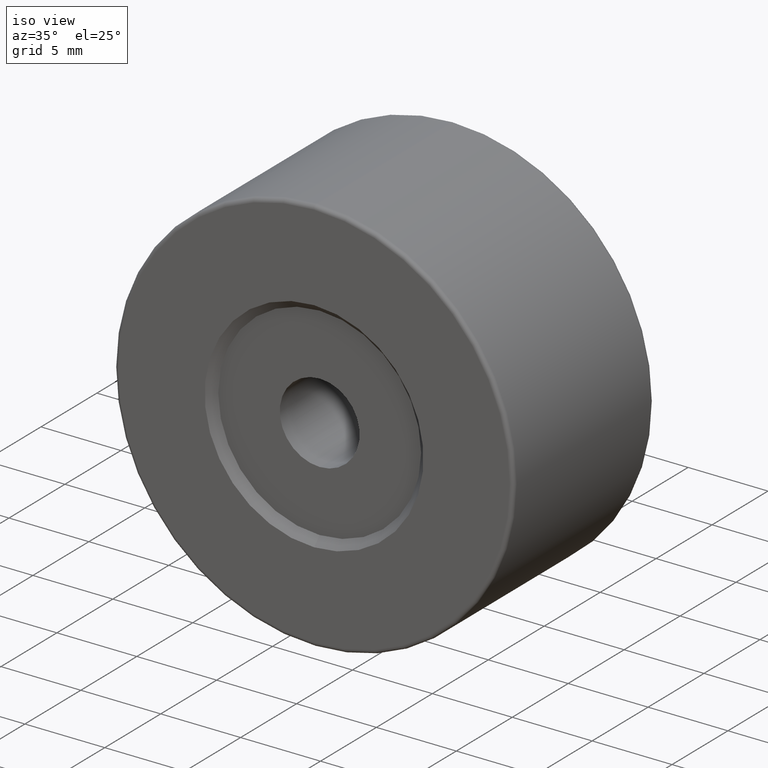
[diagram: clean part render]
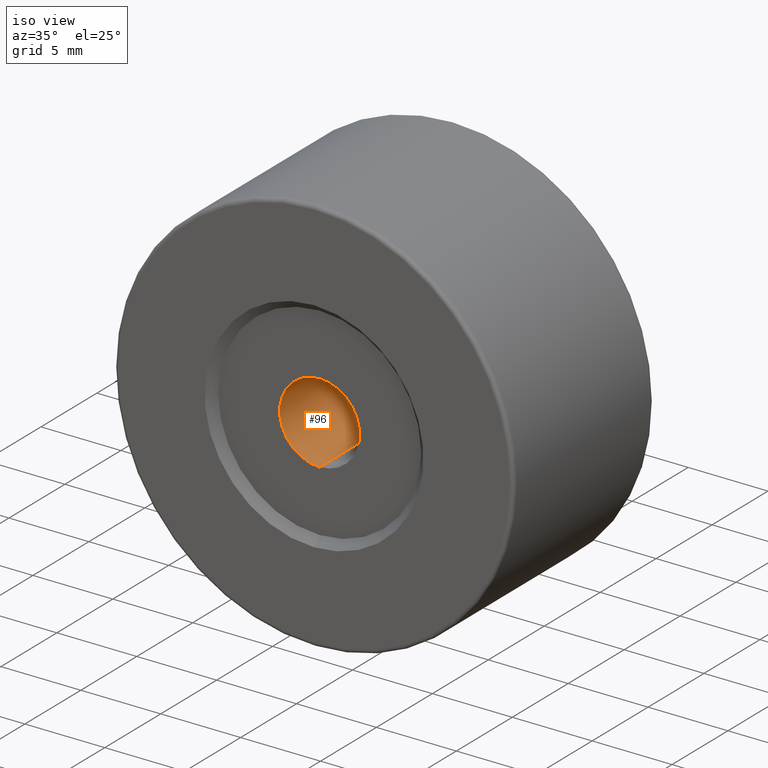
[diagram: same view with one face highlighted and labeled with its STEP entity id]
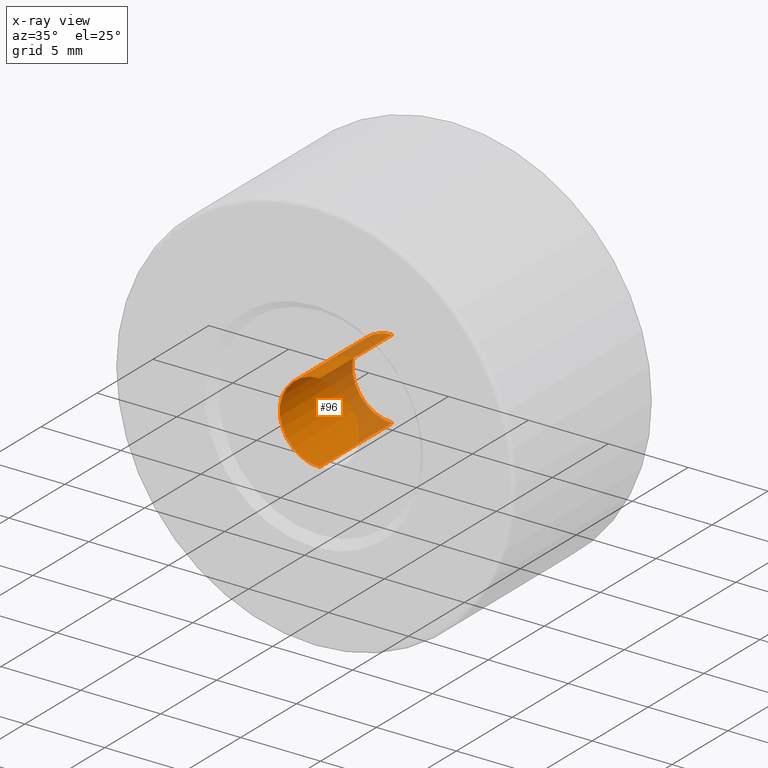
[diagram: x-ray of the same camera — body ghosted, the highlighted face saturated]
A machine part, iso view. The second image highlights one B-rep face of the part: STEP entity #96.
The next image is the same camera in x-ray: the body ghosted, the highlighted face saturated — about 27% of this face is hidden behind the body in this view.
In plain terms, the highlighted cylindrical surface (partial cylindrical patch) has radius 2.5 mm, axis along (-0, -1, -0).
Its self-contained STEP definition (entity closure, byte-faithful):
#3 = DIRECTION ( 'NONE',  ( -0.0000000000000000000, -1.000000000000000000, -0.0000000000000000000 ) ) ;
#42 = VECTOR ( 'NONE', #3, 1000.000000000000000 ) ;
#59 = CARTESIAN_POINT ( 'NONE',  ( -22.50520183104453409, -4.351747815230611494, 52.50000000000000000 ) ) ;
#61 = EDGE_LOOP ( 'NONE', ( #203, #289, #198, #118 ) ) ;
#66 = VERTEX_POINT ( 'NONE', #138 ) ;
#85 = DIRECTION ( 'NONE',  ( 0.0000000000000000000, 0.0000000000000000000, -1.000000000000000000 ) ) ;
#86 = DIRECTION ( 'NONE',  ( -0.0000000000000000000, -1.000000000000000000, -0.0000000000000000000 ) ) ;
#96 = ADVANCED_FACE ( 'NONE', ( #531 ), #307, .F. ) ;
#99 = AXIS2_PLACEMENT_3D ( 'NONE', #485, #177, #85 ) ;
#118 = ORIENTED_EDGE ( 'NONE', *, *, #224, .F. ) ;
#138 = CARTESIAN_POINT ( 'NONE',  ( -22.50520183104453409, -4.351747815230611494, 47.50000000000000711 ) ) ;
#164 = AXIS2_PLACEMENT_3D ( 'NONE', #264, #86, #179 ) ;
#177 = DIRECTION ( 'NONE',  ( -0.0000000000000000000, -1.000000000000000000, -0.0000000000000000000 ) ) ;
#179 = DIRECTION ( 'NONE',  ( 0.0000000000000000000, 0.0000000000000000000, -1.000000000000000000 ) ) ;
#191 = EDGE_CURVE ( 'NONE', #375, #66, #572, .T. ) ;
#198 = ORIENTED_EDGE ( 'NONE', *, *, #191, .T. ) ;
#203 = ORIENTED_EDGE ( 'NONE', *, *, #259, .F. ) ;
#210 = DIRECTION ( 'NONE',  ( 0.0000000000000000000, 0.0000000000000000000, -1.000000000000000000 ) ) ;
#222 = LINE ( 'NONE', #407, #231 ) ;
#224 = EDGE_CURVE ( 'NONE', #250, #66, #538, .T. ) ;
#231 = VECTOR ( 'NONE', #444, 1000.000000000000000 ) ;
#250 = VERTEX_POINT ( 'NONE', #534 ) ;
#258 = VERTEX_POINT ( 'NONE', #491 ) ;
#259 = EDGE_CURVE ( 'NONE', #258, #250, #417, .T. ) ;
#264 = CARTESIAN_POINT ( 'NONE',  ( -22.50520183104453409, 2.148252184769387618, 50.00000000000000000 ) ) ;
#289 = ORIENTED_EDGE ( 'NONE', *, *, #293, .T. ) ;
#293 = EDGE_CURVE ( 'NONE', #258, #375, #222, .T. ) ;
#307 = CYLINDRICAL_SURFACE ( 'NONE', #99, 2.499999999999995115 ) ;
#375 = VERTEX_POINT ( 'NONE', #59 ) ;
#407 = CARTESIAN_POINT ( 'NONE',  ( -22.50520183104453409, -4.851747815230612382, 52.50000000000000000 ) ) ;
#417 = CIRCLE ( 'NONE', #164, 2.499999999999995115 ) ;
#444 = DIRECTION ( 'NONE',  ( -0.0000000000000000000, -1.000000000000000000, -0.0000000000000000000 ) ) ;
#466 = AXIS2_PLACEMENT_3D ( 'NONE', #519, #473, #210 ) ;
#473 = DIRECTION ( 'NONE',  ( 0.0000000000000000000, -1.000000000000000000, 0.0000000000000000000 ) ) ;
#485 = CARTESIAN_POINT ( 'NONE',  ( -22.50520183104453409, -4.851747815230612382, 50.00000000000000000 ) ) ;
#486 = CARTESIAN_POINT ( 'NONE',  ( -22.50520183104453409, -4.851747815230612382, 47.50000000000000711 ) ) ;
#491 = CARTESIAN_POINT ( 'NONE',  ( -22.50520183104453409, 2.148252184769387618, 52.50000000000000000 ) ) ;
#519 = CARTESIAN_POINT ( 'NONE',  ( -22.50520183104453409, -4.351747815230611494, 50.00000000000000000 ) ) ;
#531 = FACE_OUTER_BOUND ( 'NONE', #61, .T. ) ;
#534 = CARTESIAN_POINT ( 'NONE',  ( -22.50520183104453409, 2.148252184769387618, 47.50000000000000711 ) ) ;
#538 = LINE ( 'NONE', #486, #42 ) ;
#572 = CIRCLE ( 'NONE', #466, 2.499999999999995115 ) ;